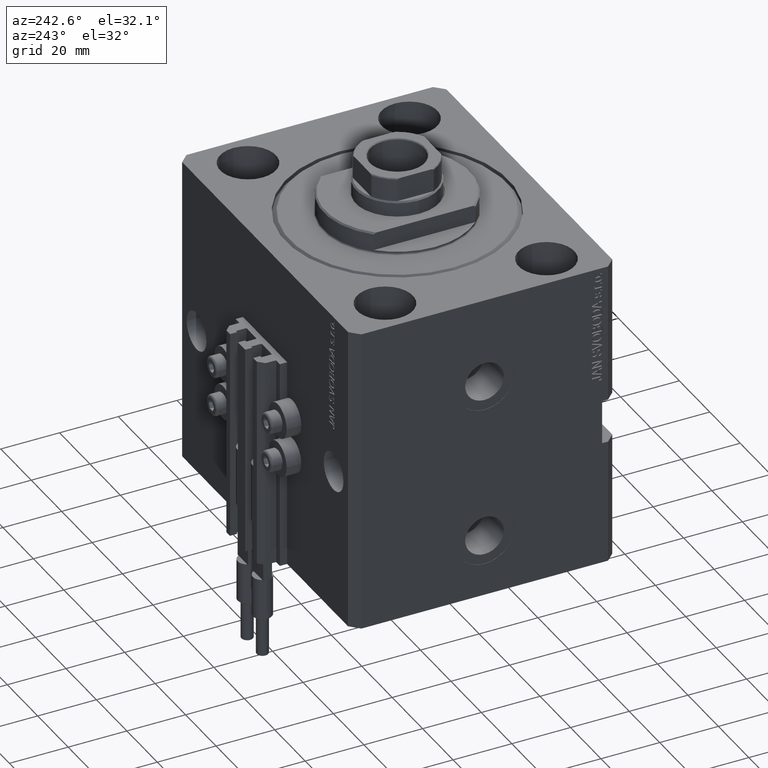
[diagram: clean part render]
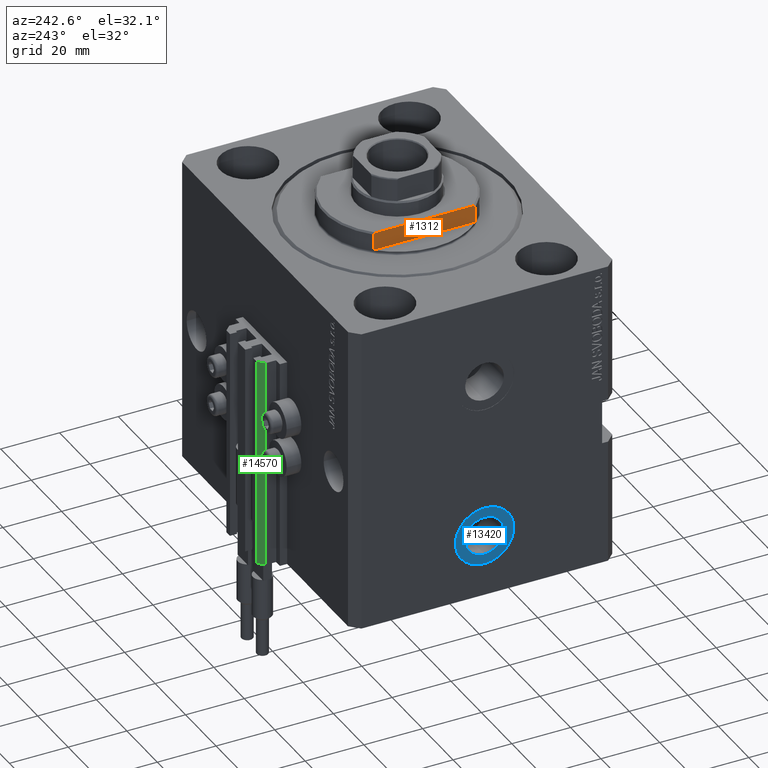
[diagram: same view with three faces highlighted in distinct colors, each labeled with its STEP entity id]
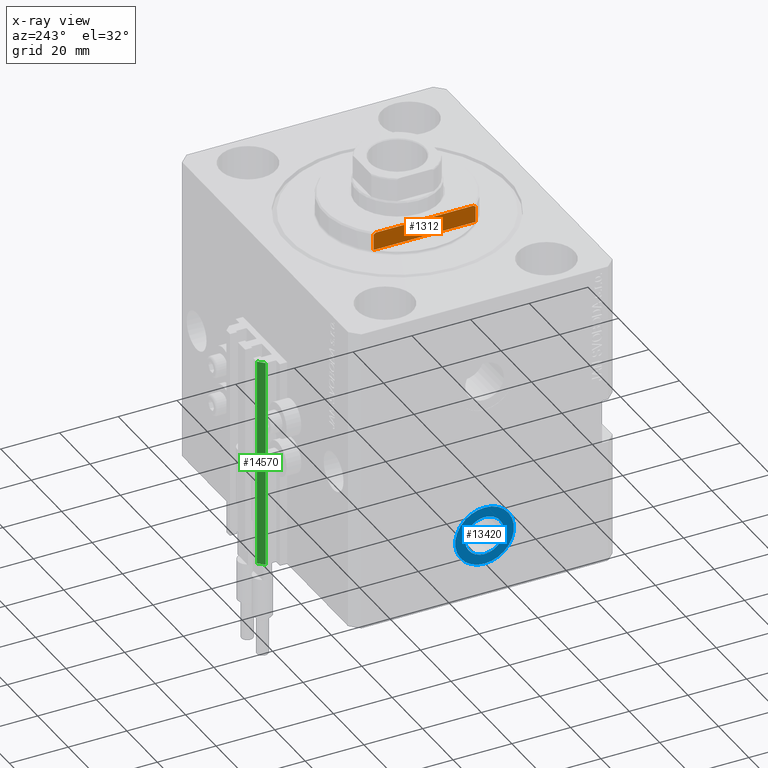
[diagram: x-ray of the same camera — body ghosted, the three highlighted faces saturated]
A machine part, auxiliary view with three faces highlighted in distinct colors.
The next image is the same camera in x-ray (body ghosted, the three faces saturated) — at least one of them is partly hidden behind the body in this view.
Their STEP definitions:

[orange] entity #1312 — the highlighted planar face has unit normal (-1, 0, 0).
#1312 = ADVANCED_FACE ( 'NONE', ( #39187 ), #47022, .T. ) ;
#1363 = EDGE_CURVE ( 'NONE', #33326, #3640, #24751, .T. ) ;
#1972 = LINE ( 'NONE', #21183, #5921 ) ;
#2246 = VERTEX_POINT ( 'NONE', #38509 ) ;
#3640 = VERTEX_POINT ( 'NONE', #5535 ) ;
#4984 = AXIS2_PLACEMENT_3D ( 'NONE', #5045, #15916, #39690 ) ;
#5045 = CARTESIAN_POINT ( 'NONE',  ( 18.00000000000000000, -41.24318125460256113, -1.000000000000000000 ) ) ;
#5535 = CARTESIAN_POINT ( 'NONE',  ( 18.00000000000000000, -17.34935157289747920, -6.499999999999971578 ) ) ;
#5916 = VECTOR ( 'NONE', #46912, 1000.000000000000000 ) ;
#5921 = VECTOR ( 'NONE', #36114, 1000.000000000000000 ) ;
#8217 = LINE ( 'NONE', #23637, #5916 ) ;
#8799 = ORIENTED_EDGE ( 'NONE', *, *, #33365, .F. ) ;
#9114 = EDGE_LOOP ( 'NONE', ( #15850, #44492, #45157, #9133, #31941, #8799 ) ) ;
#9133 = ORIENTED_EDGE ( 'NONE', *, *, #29423, .F. ) ;
#9177 = B_SPLINE_CURVE_WITH_KNOTS ( 'NONE', 3,
 ( #17850, #14561, #22644, #34280 ),
 .UNSPECIFIED., .F., .F.,
 ( 4, 4 ),
 ( 0.08262823419570403116, 0.08350100171199384413 ),
 .UNSPECIFIED. ) ;
#11942 = LINE ( 'NONE', #34693, #34783 ) ;
#13674 = CARTESIAN_POINT ( 'NONE',  ( 18.00000000000000000, -16.62077013859462227, -7.000000000000000000 ) ) ;
#14224 = CARTESIAN_POINT ( 'NONE',  ( 18.00000000000000000, 17.10737464676706310, -6.667925710558596286 ) ) ;
#14561 = CARTESIAN_POINT ( 'NONE',  ( 18.00000000000000000, -16.86466398118529852, -6.834542714452327417 ) ) ;
#15850 = ORIENTED_EDGE ( 'NONE', *, *, #21014, .T. ) ;
#15916 = DIRECTION ( 'NONE',  ( 1.000000000000000000, 0.000000000000000000, -0.000000000000000000 ) ) ;
#16221 = DIRECTION ( 'NONE',  ( -0.000000000000000000, -0.000000000000000000, 1.000000000000000000 ) ) ;
#17403 = CARTESIAN_POINT ( 'NONE',  ( 18.00000000000000000, -17.34935157289747920, -7.000000000000000000 ) ) ;
#17850 = CARTESIAN_POINT ( 'NONE',  ( 18.00000000000000000, -16.62077013859462227, -7.000000000000000000 ) ) ;
#17898 = DIRECTION ( 'NONE',  ( 0.000000000000000000, 0.000000000000000000, -1.000000000000000000 ) ) ;
#18099 = CARTESIAN_POINT ( 'NONE',  ( 18.00000000000000000, 16.62077013859462227, -7.000000000000000000 ) ) ;
#18270 = CARTESIAN_POINT ( 'NONE',  ( 18.00000000000000000, 16.62077013859462227, -7.000000000000000000 ) ) ;
#21014 = EDGE_CURVE ( 'NONE', #2246, #40593, #11942, .T. ) ;
#21096 = VERTEX_POINT ( 'NONE', #13674 ) ;
#21183 = CARTESIAN_POINT ( 'NONE',  ( 18.00000000000000000, -41.24318125460256113, -7.000000000000000000 ) ) ;
#22644 = CARTESIAN_POINT ( 'NONE',  ( 18.00000000000000000, -17.10749533145903456, -6.667841958512576106 ) ) ;
#23637 = CARTESIAN_POINT ( 'NONE',  ( 18.00000000000000000, -41.24318125460256113, -1.000000000000000000 ) ) ;
#24751 = LINE ( 'NONE', #17403, #34033 ) ;
#26290 = EDGE_CURVE ( 'NONE', #46481, #21096, #1972, .T. ) ;
#29395 = CARTESIAN_POINT ( 'NONE',  ( 18.00000000000000000, 16.86453887646376870, -6.834627585342921030 ) ) ;
#29423 = EDGE_CURVE ( 'NONE', #21096, #3640, #9177, .T. ) ;
#29657 = EDGE_CURVE ( 'NONE', #40593, #33326, #8217, .T. ) ;
#31941 = ORIENTED_EDGE ( 'NONE', *, *, #26290, .F. ) ;
#33000 = CARTESIAN_POINT ( 'NONE',  ( 18.00000000000000000, 17.34935157289747920, -1.000000000000000000 ) ) ;
#33326 = VERTEX_POINT ( 'NONE', #48393 ) ;
#33365 = EDGE_CURVE ( 'NONE', #2246, #46481, #36091, .T. ) ;
#34033 = VECTOR ( 'NONE', #17898, 1000.000000000000000 ) ;
#34280 = CARTESIAN_POINT ( 'NONE',  ( 18.00000000000000000, -17.34935157289747920, -6.499999999999971578 ) ) ;
#34693 = CARTESIAN_POINT ( 'NONE',  ( 18.00000000000000000, 17.34935157289747920, -7.000000000000000000 ) ) ;
#34783 = VECTOR ( 'NONE', #16221, 1000.000000000000000 ) ;
#36091 = B_SPLINE_CURVE_WITH_KNOTS ( 'NONE', 3,
 ( #45850, #14224, #29395, #18270 ),
 .UNSPECIFIED., .F., .F.,
 ( 4, 4 ),
 ( 0.04589228951331418560, 0.04678015196826892930 ),
 .UNSPECIFIED. ) ;
#36114 = DIRECTION ( 'NONE',  ( 0.000000000000000000, -1.000000000000000000, -0.000000000000000000 ) ) ;
#38509 = CARTESIAN_POINT ( 'NONE',  ( 18.00000000000000000, 17.34935157289748986, -6.499999999999978684 ) ) ;
#39187 = FACE_OUTER_BOUND ( 'NONE', #9114, .T. ) ;
#39690 = DIRECTION ( 'NONE',  ( -0.000000000000000000, 0.000000000000000000, -1.000000000000000000 ) ) ;
#40593 = VERTEX_POINT ( 'NONE', #33000 ) ;
#44492 = ORIENTED_EDGE ( 'NONE', *, *, #29657, .T. ) ;
#45157 = ORIENTED_EDGE ( 'NONE', *, *, #1363, .T. ) ;
#45850 = CARTESIAN_POINT ( 'NONE',  ( 18.00000000000000000, 17.34935157289748986, -6.499999999999978684 ) ) ;
#46481 = VERTEX_POINT ( 'NONE', #18099 ) ;
#46912 = DIRECTION ( 'NONE',  ( 0.000000000000000000, -1.000000000000000000, -0.000000000000000000 ) ) ;
#47022 = PLANE ( 'NONE',  #4984 ) ;
#48393 = CARTESIAN_POINT ( 'NONE',  ( 18.00000000000000000, -17.34935157289747920, -1.000000000000000000 ) ) ;

[blue] entity #13420 — the highlighted planar face has unit normal (-1, 0, 0).
#895 = DIRECTION ( 'NONE',  ( 0.000000000000000000, 0.000000000000000000, 1.000000000000000000 ) ) ;
#2133 = CARTESIAN_POINT ( 'NONE',  ( -57.39999999999999147, 4.768298747953531541E-15, -90.58000000000001251 ) ) ;
#4363 = AXIS2_PLACEMENT_3D ( 'NONE', #11639, #42511, #6848 ) ;
#5963 = CIRCLE ( 'NONE', #38224, 9.999999999999994671 ) ;
#6391 = DIRECTION ( 'NONE',  ( -1.000000000000000000, 0.000000000000000000, 0.000000000000000000 ) ) ;
#6683 = DIRECTION ( 'NONE',  ( 0.000000000000000000, 0.000000000000000000, 1.000000000000000000 ) ) ;
#6848 = DIRECTION ( 'NONE',  ( 0.000000000000000000, 0.000000000000000000, 1.000000000000000000 ) ) ;
#7294 = CARTESIAN_POINT ( 'NONE',  ( -57.39999999999999147, 3.962481154114572500E-15, -84.00000000000000000 ) ) ;
#7393 = EDGE_CURVE ( 'NONE', #35831, #37505, #38306, .T. ) ;
#8102 = CARTESIAN_POINT ( 'NONE',  ( -57.39999999999999147, 3.962481154114572500E-15, -74.00000000000001421 ) ) ;
#9979 = DIRECTION ( 'NONE',  ( -1.000000000000000000, 0.000000000000000000, 0.000000000000000000 ) ) ;
#10111 = AXIS2_PLACEMENT_3D ( 'NONE', #48873, #6391, #14464 ) ;
#11596 = DIRECTION ( 'NONE',  ( -1.000000000000000000, 0.000000000000000000, 0.000000000000000000 ) ) ;
#11639 = CARTESIAN_POINT ( 'NONE',  ( -57.39999999999999147, 3.962481154114572500E-15, -84.00000000000000000 ) ) ;
#13420 = ADVANCED_FACE ( 'NONE', ( #37976, #37479 ), #45330, .T. ) ;
#13755 = CARTESIAN_POINT ( 'NONE',  ( -57.39999999999999147, 3.962481154114572500E-15, -84.00000000000000000 ) ) ;
#14464 = DIRECTION ( 'NONE',  ( 0.000000000000000000, 0.000000000000000000, 1.000000000000000000 ) ) ;
#17203 = CIRCLE ( 'NONE', #41449, 6.580000000000002736 ) ;
#17445 = EDGE_CURVE ( 'NONE', #44589, #25897, #42571, .T. ) ;
#20275 = CARTESIAN_POINT ( 'NONE',  ( -57.39999999999999147, 3.962481154114572500E-15, -84.00000000000000000 ) ) ;
#20752 = AXIS2_PLACEMENT_3D ( 'NONE', #13755, #9979, #6683 ) ;
#25296 = ORIENTED_EDGE ( 'NONE', *, *, #29062, .F. ) ;
#25897 = VERTEX_POINT ( 'NONE', #8102 ) ;
#27899 = ORIENTED_EDGE ( 'NONE', *, *, #17445, .T. ) ;
#29062 = EDGE_CURVE ( 'NONE', #37505, #35831, #17203, .T. ) ;
#29233 = EDGE_LOOP ( 'NONE', ( #46535, #25296 ) ) ;
#30595 = EDGE_CURVE ( 'NONE', #25897, #44589, #5963, .T. ) ;
#32394 = DIRECTION ( 'NONE',  ( -1.000000000000000000, 0.000000000000000000, 0.000000000000000000 ) ) ;
#35831 = VERTEX_POINT ( 'NONE', #39367 ) ;
#37479 = FACE_OUTER_BOUND ( 'NONE', #38674, .T. ) ;
#37505 = VERTEX_POINT ( 'NONE', #2133 ) ;
#37976 = FACE_BOUND ( 'NONE', #29233, .T. ) ;
#38224 = AXIS2_PLACEMENT_3D ( 'NONE', #7294, #11596, #895 ) ;
#38306 = CIRCLE ( 'NONE', #4363, 6.580000000000002736 ) ;
#38674 = EDGE_LOOP ( 'NONE', ( #41614, #27899 ) ) ;
#39367 = CARTESIAN_POINT ( 'NONE',  ( -57.39999999999999147, 3.962481154114572500E-15, -77.42000000000000171 ) ) ;
#39856 = CARTESIAN_POINT ( 'NONE',  ( -57.39999999999999147, 5.187127953261924770E-15, -94.00000000000000000 ) ) ;
#41449 = AXIS2_PLACEMENT_3D ( 'NONE', #20275, #32394, #45013 ) ;
#41614 = ORIENTED_EDGE ( 'NONE', *, *, #30595, .T. ) ;
#42511 = DIRECTION ( 'NONE',  ( -1.000000000000000000, 0.000000000000000000, 0.000000000000000000 ) ) ;
#42571 = CIRCLE ( 'NONE', #20752, 9.999999999999994671 ) ;
#44589 = VERTEX_POINT ( 'NONE', #39856 ) ;
#45013 = DIRECTION ( 'NONE',  ( 0.000000000000000000, 0.000000000000000000, 1.000000000000000000 ) ) ;
#45330 = PLANE ( 'NONE',  #10111 ) ;
#46535 = ORIENTED_EDGE ( 'NONE', *, *, #7393, .F. ) ;
#48873 = CARTESIAN_POINT ( 'NONE',  ( -57.39999999999999147, 3.962481154114572500E-15, -84.00000000000000000 ) ) ;

[green] entity #14570 — the highlighted planar face has unit normal (-0.7071, 0.7071, 0).
#347 = ORIENTED_EDGE ( 'NONE', *, *, #48181, .F. ) ;
#2171 = FACE_OUTER_BOUND ( 'NONE', #11854, .T. ) ;
#2791 = VERTEX_POINT ( 'NONE', #8462 ) ;
#2989 = CARTESIAN_POINT ( 'NONE',  ( -12.00000000000000000, 50.99999999999999289, -105.0000000000000000 ) ) ;
#3237 = CARTESIAN_POINT ( 'NONE',  ( -10.00000000000000000, 52.99999999999999289, -105.0000000000000000 ) ) ;
#3710 = CARTESIAN_POINT ( 'NONE',  ( -12.00000000000000000, 50.99999999999999289, -105.0000000000000000 ) ) ;
#4781 = VERTEX_POINT ( 'NONE', #26417 ) ;
#5037 = ORIENTED_EDGE ( 'NONE', *, *, #18119, .T. ) ;
#5433 = LINE ( 'NONE', #21082, #47189 ) ;
#5787 = VECTOR ( 'NONE', #20216, 1000.000000000000000 ) ;
#6465 = CARTESIAN_POINT ( 'NONE',  ( -10.00000000000000000, 52.99999999999999289, -105.0000000000000000 ) ) ;
#8462 = CARTESIAN_POINT ( 'NONE',  ( -10.00000000000000000, 52.99999999999999289, -33.00000000000000000 ) ) ;
#9462 = DIRECTION ( 'NONE',  ( -0.7071067811865472397, -0.7071067811865479058, 0.000000000000000000 ) ) ;
#9511 = DIRECTION ( 'NONE',  ( -0.7071067811865479058, 0.7071067811865472397, 0.000000000000000000 ) ) ;
#10145 = ORIENTED_EDGE ( 'NONE', *, *, #19398, .T. ) ;
#11854 = EDGE_LOOP ( 'NONE', ( #45852, #347, #5037, #10145 ) ) ;
#14570 = ADVANCED_FACE ( 'NONE', ( #2171 ), #25916, .T. ) ;
#15097 = LINE ( 'NONE', #2989, #16777 ) ;
#15911 = VECTOR ( 'NONE', #44517, 999.9999999999998863 ) ;
#16777 = VECTOR ( 'NONE', #18395, 1000.000000000000000 ) ;
#16921 = CARTESIAN_POINT ( 'NONE',  ( -10.00000000000000000, 52.99999999999999289, -105.0000000000000000 ) ) ;
#18119 = EDGE_CURVE ( 'NONE', #41742, #31259, #40727, .T. ) ;
#18395 = DIRECTION ( 'NONE',  ( 0.000000000000000000, 0.000000000000000000, 1.000000000000000000 ) ) ;
#19398 = EDGE_CURVE ( 'NONE', #31259, #4781, #15097, .T. ) ;
#20216 = DIRECTION ( 'NONE',  ( 0.000000000000000000, 0.000000000000000000, 1.000000000000000000 ) ) ;
#21082 = CARTESIAN_POINT ( 'NONE',  ( -10.00000000000000000, 52.99999999999999289, -33.00000000000000000 ) ) ;
#21880 = DIRECTION ( 'NONE',  ( -0.7071067811865472397, -0.7071067811865479058, 0.000000000000000000 ) ) ;
#24641 = AXIS2_PLACEMENT_3D ( 'NONE', #6465, #9511, #21880 ) ;
#25279 = CARTESIAN_POINT ( 'NONE',  ( -10.00000000000000000, 52.99999999999999289, -105.0000000000000000 ) ) ;
#25916 = PLANE ( 'NONE',  #24641 ) ;
#26417 = CARTESIAN_POINT ( 'NONE',  ( -12.00000000000000000, 50.99999999999999289, -33.00000000000000000 ) ) ;
#28739 = EDGE_CURVE ( 'NONE', #2791, #4781, #5433, .T. ) ;
#31259 = VERTEX_POINT ( 'NONE', #3710 ) ;
#36155 = LINE ( 'NONE', #16921, #5787 ) ;
#40727 = LINE ( 'NONE', #25279, #15911 ) ;
#41742 = VERTEX_POINT ( 'NONE', #3237 ) ;
#44517 = DIRECTION ( 'NONE',  ( -0.7071067811865472397, -0.7071067811865479058, 0.000000000000000000 ) ) ;
#45852 = ORIENTED_EDGE ( 'NONE', *, *, #28739, .F. ) ;
#47189 = VECTOR ( 'NONE', #9462, 999.9999999999998863 ) ;
#48181 = EDGE_CURVE ( 'NONE', #41742, #2791, #36155, .T. ) ;